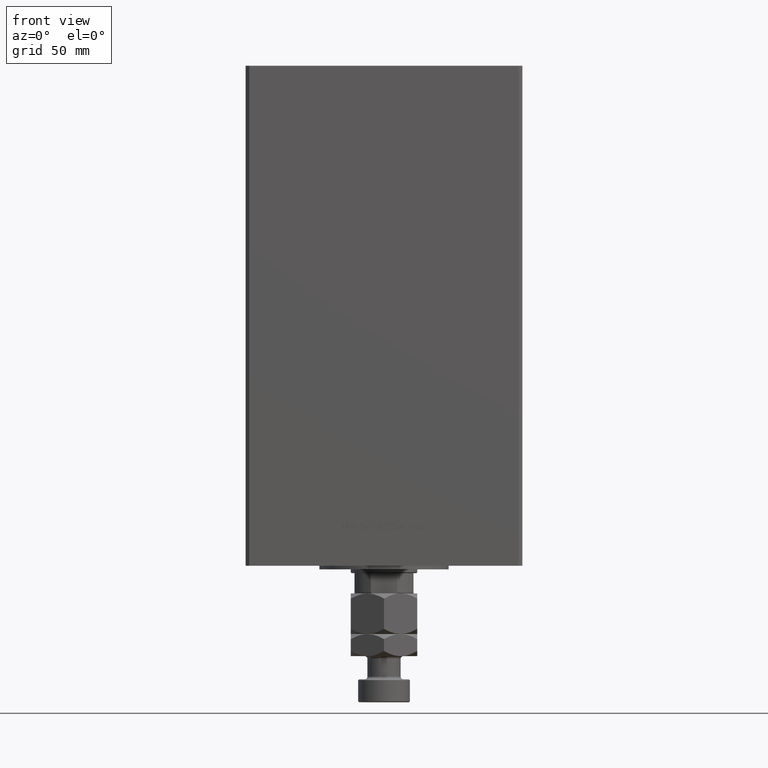
[diagram: clean part render]
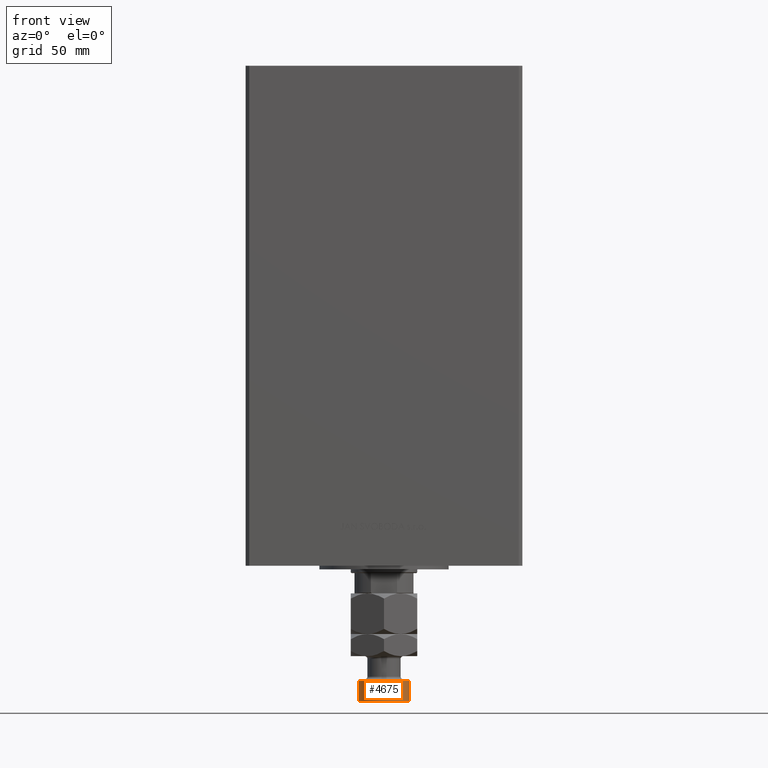
[diagram: same view with one face highlighted and labeled with its STEP entity id]
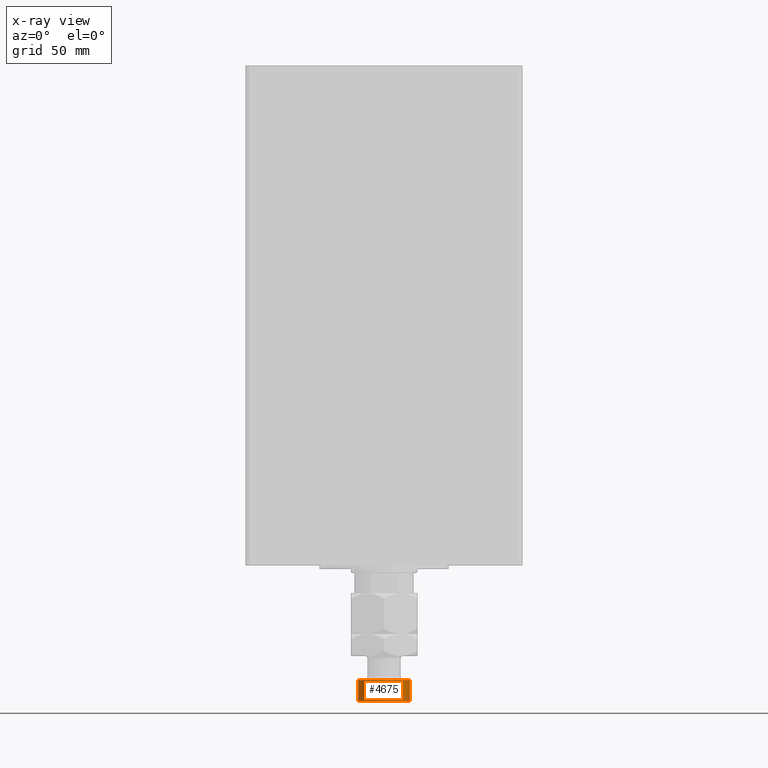
[diagram: x-ray of the same camera — body ghosted, the highlighted face saturated]
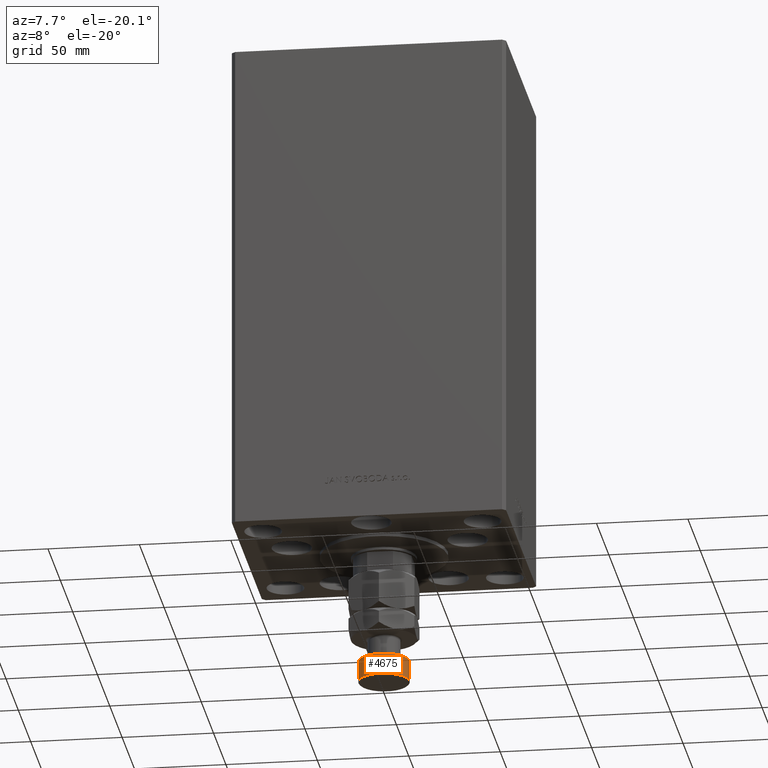
[diagram: same view with one face highlighted and labeled with its STEP entity id]
A machine part, front view. The second image highlights one B-rep face of the part: STEP entity #4675.
The next image is the same camera in x-ray: the body ghosted, the highlighted face saturated — about 0% of this face is hidden behind the body in this view.
A second angle (auxiliary view) of the same face is appended — the face is thin or edge-on in the first view.
In plain terms, the highlighted cylindrical surface (edge-blend (fillet) strip) has radius 14 mm, axis along (0, -0, 1).
Its self-contained STEP definition (entity closure, byte-faithful):
#856 = CIRCLE ( 'NONE', #36023, 14.00000000000000000 ) ;
#1903 = DIRECTION ( 'NONE',  ( 1.000000000000000000, 0.000000000000000000, 0.000000000000000000 ) ) ;
#2761 = CARTESIAN_POINT ( 'NONE',  ( 0.000000000000000000, 0.000000000000000000, 59.00000000000000000 ) ) ;
#4332 = ORIENTED_EDGE ( 'NONE', *, *, #30898, .F. ) ;
#4675 = ADVANCED_FACE ( 'NONE', ( #26315 ), #45781, .T. ) ;
#5231 = LINE ( 'NONE', #32607, #45471 ) ;
#6312 = CIRCLE ( 'NONE', #34135, 14.00000000000000000 ) ;
#8010 = DIRECTION ( 'NONE',  ( -0.000000000000000000, -0.000000000000000000, -1.000000000000000000 ) ) ;
#11049 = EDGE_LOOP ( 'NONE', ( #4332, #11103, #11107, #35439 ) ) ;
#11103 = ORIENTED_EDGE ( 'NONE', *, *, #37601, .T. ) ;
#11107 = ORIENTED_EDGE ( 'NONE', *, *, #43689, .T. ) ;
#12150 = VERTEX_POINT ( 'NONE', #31268 ) ;
#13403 = DIRECTION ( 'NONE',  ( -0.000000000000000000, -0.000000000000000000, -1.000000000000000000 ) ) ;
#14894 = EDGE_CURVE ( 'NONE', #12150, #39551, #856, .T. ) ;
#15942 = LINE ( 'NONE', #46949, #28720 ) ;
#23353 = CARTESIAN_POINT ( 'NONE',  ( 14.00000000000000000, 1.714505518806294638E-15, 58.50000000000002132 ) ) ;
#25817 = VERTEX_POINT ( 'NONE', #23353 ) ;
#26315 = FACE_OUTER_BOUND ( 'NONE', #11049, .T. ) ;
#28720 = VECTOR ( 'NONE', #8010, 1000.000000000000000 ) ;
#29289 = DIRECTION ( 'NONE',  ( -0.000000000000000000, -0.000000000000000000, 1.000000000000000000 ) ) ;
#30898 = EDGE_CURVE ( 'NONE', #25817, #39551, #5231, .T. ) ;
#31268 = CARTESIAN_POINT ( 'NONE',  ( -14.00000000000000000, 0.000000000000000000, 46.99999999999998579 ) ) ;
#32607 = CARTESIAN_POINT ( 'NONE',  ( 14.00000000000000000, 1.714505518806294638E-15, 59.00000000000000000 ) ) ;
#33447 = CARTESIAN_POINT ( 'NONE',  ( 14.00000000000000000, 1.714505518806294638E-15, 46.99999999999998579 ) ) ;
#33875 = CARTESIAN_POINT ( 'NONE',  ( -14.00000000000000000, 0.000000000000000000, 58.50000000000002132 ) ) ;
#34135 = AXIS2_PLACEMENT_3D ( 'NONE', #35316, #38399, #39411 ) ;
#35316 = CARTESIAN_POINT ( 'NONE',  ( 0.000000000000000000, 0.000000000000000000, 58.50000000000002132 ) ) ;
#35439 = ORIENTED_EDGE ( 'NONE', *, *, #14894, .T. ) ;
#36023 = AXIS2_PLACEMENT_3D ( 'NONE', #44420, #29289, #1903 ) ;
#36658 = VERTEX_POINT ( 'NONE', #33875 ) ;
#37601 = EDGE_CURVE ( 'NONE', #25817, #36658, #6312, .T. ) ;
#37845 = DIRECTION ( 'NONE',  ( -0.000000000000000000, -0.000000000000000000, -1.000000000000000000 ) ) ;
#38399 = DIRECTION ( 'NONE',  ( 0.000000000000000000, 0.000000000000000000, -1.000000000000000000 ) ) ;
#39411 = DIRECTION ( 'NONE',  ( 1.000000000000000000, 0.000000000000000000, 0.000000000000000000 ) ) ;
#39551 = VERTEX_POINT ( 'NONE', #33447 ) ;
#41167 = DIRECTION ( 'NONE',  ( -1.000000000000000000, 0.000000000000000000, 0.000000000000000000 ) ) ;
#43689 = EDGE_CURVE ( 'NONE', #36658, #12150, #15942, .T. ) ;
#44420 = CARTESIAN_POINT ( 'NONE',  ( 0.000000000000000000, 0.000000000000000000, 46.99999999999998579 ) ) ;
#45471 = VECTOR ( 'NONE', #13403, 1000.000000000000000 ) ;
#45781 = CYLINDRICAL_SURFACE ( 'NONE', #48433, 14.00000000000000000 ) ;
#46949 = CARTESIAN_POINT ( 'NONE',  ( -14.00000000000000000, 0.000000000000000000, 59.00000000000000000 ) ) ;
#48433 = AXIS2_PLACEMENT_3D ( 'NONE', #2761, #37845, #41167 ) ;